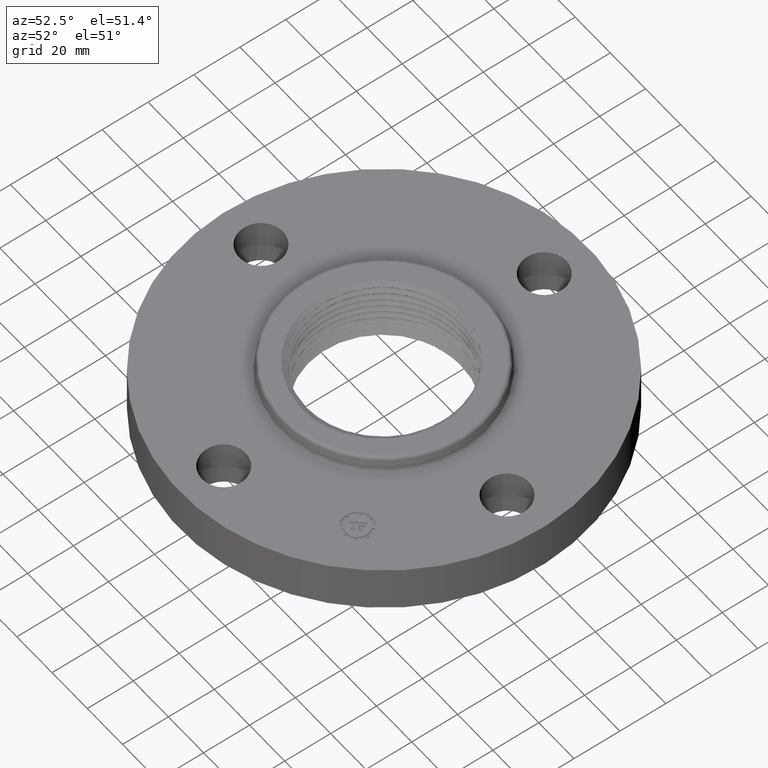
[diagram: clean part render]
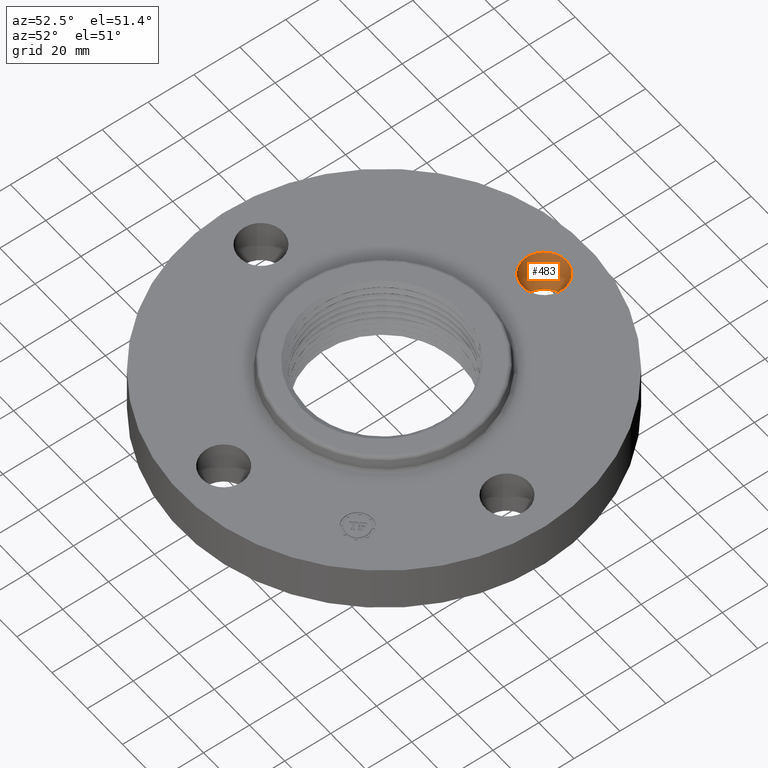
[diagram: same view with one face highlighted and labeled with its STEP entity id]
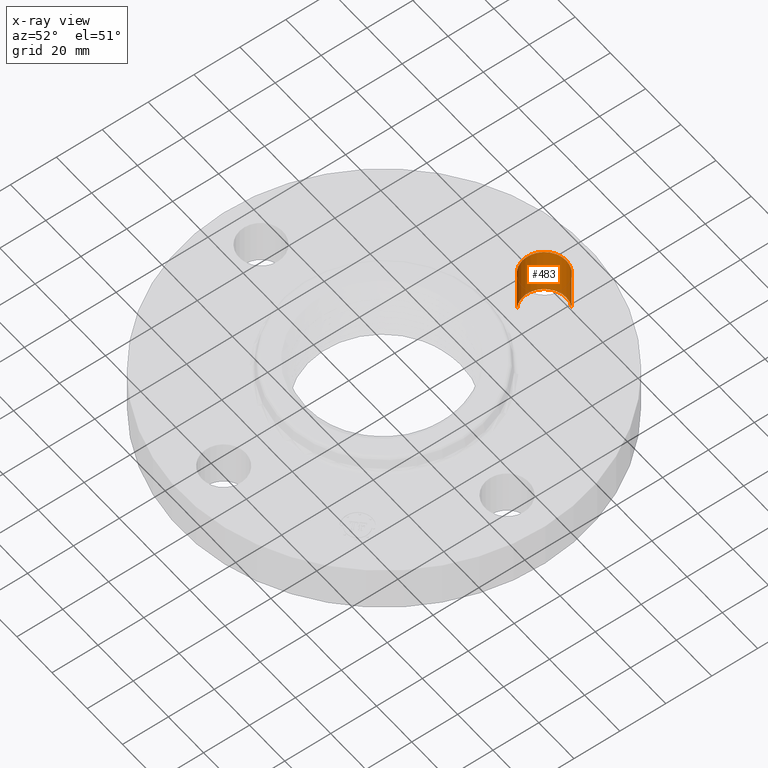
[diagram: x-ray of the same camera — body ghosted, the highlighted face saturated]
A machine part, auxiliary view. The second image highlights one B-rep face of the part: STEP entity #483.
The next image is the same camera in x-ray: the body ghosted, the highlighted face saturated — about 1% of this face is hidden behind the body in this view.
In plain terms, the highlighted cylindrical surface (edge-blend (fillet) strip) has radius 9.525 mm, axis along (0, 0, -1).
Its self-contained STEP definition (entity closure, byte-faithful):
#430=AXIS2_PLACEMENT_3D('Cylinder Axis2P3D',#427,#428,#429) ;
#469=AXIS2_PLACEMENT_3D('Circle Axis2P3D',#467,#468,$) ;
#474=AXIS2_PLACEMENT_3D('Circle Axis2P3D',#472,#473,$) ;
#427=CARTESIAN_POINT('Axis2P3D Location',(-5.0516680465E-016,2.75000000001,0.806062992129)) ;
#432=CARTESIAN_POINT('Line Origine',(0.179784576977,3.07909346072,0.405000000002)) ;
#436=CARTESIAN_POINT('Vertex',(0.179784576977,3.07909346072,0.)) ;
#438=CARTESIAN_POINT('Vertex',(0.179784576977,3.07909346072,0.810000000003)) ;
#445=CARTESIAN_POINT('Vertex',(-0.179784576977,2.4209065393,0.)) ;
#448=CARTESIAN_POINT('Line Origine',(-0.179784576977,2.4209065393,0.405000000002)) ;
#452=CARTESIAN_POINT('Vertex',(-0.179784576977,2.4209065393,0.810000000003)) ;
#467=CARTESIAN_POINT('Axis2P3D Location',(-5.0516680465E-016,2.75000000001,0.)) ;
#472=CARTESIAN_POINT('Axis2P3D Location',(-5.0516680465E-016,2.75000000001,0.810000000003)) ;
#428=DIRECTION('Axis2P3D Direction',(0.,0.,-0.0393700787402)) ;
#429=DIRECTION('Axis2P3D XDirection',(-0.0188750212049,-0.0345504945626,-0.)) ;
#433=DIRECTION('Vector Direction',(0.,0.,-0.0393700787402)) ;
#449=DIRECTION('Vector Direction',(0.,0.,-0.0393700787402)) ;
#468=DIRECTION('Axis2P3D Direction',(0.,0.,-0.0393700787402)) ;
#473=DIRECTION('Axis2P3D Direction',(0.,0.,-0.0393700787402)) ;
#434=VECTOR('Line Direction',#433,0.0393700787402) ;
#450=VECTOR('Line Direction',#449,0.0393700787402) ;
#478=ORIENTED_EDGE('',*,*,#454,.F.) ;
#479=ORIENTED_EDGE('',*,*,#471,.T.) ;
#480=ORIENTED_EDGE('',*,*,#440,.T.) ;
#481=ORIENTED_EDGE('',*,*,#476,.F.) ;
#483=ADVANCED_FACE('PartBody',(#482),#431,.F.) ;
#470=CIRCLE('generated circle',#469,0.375000000002) ;
#475=CIRCLE('generated circle',#474,0.375000000002) ;
#431=CYLINDRICAL_SURFACE('generated cylinder',#430,0.375000000002) ;
#440=EDGE_CURVE('',#437,#439,#435,.F.) ;
#454=EDGE_CURVE('',#446,#453,#451,.F.) ;
#471=EDGE_CURVE('',#446,#437,#470,.T.) ;
#476=EDGE_CURVE('',#453,#439,#475,.T.) ;
#477=EDGE_LOOP('',(#478,#479,#480,#481)) ;
#482=FACE_OUTER_BOUND('',#477,.T.) ;
#435=LINE('Line',#432,#434) ;
#451=LINE('Line',#448,#450) ;
#437=VERTEX_POINT('',#436) ;
#439=VERTEX_POINT('',#438) ;
#446=VERTEX_POINT('',#445) ;
#453=VERTEX_POINT('',#452) ;